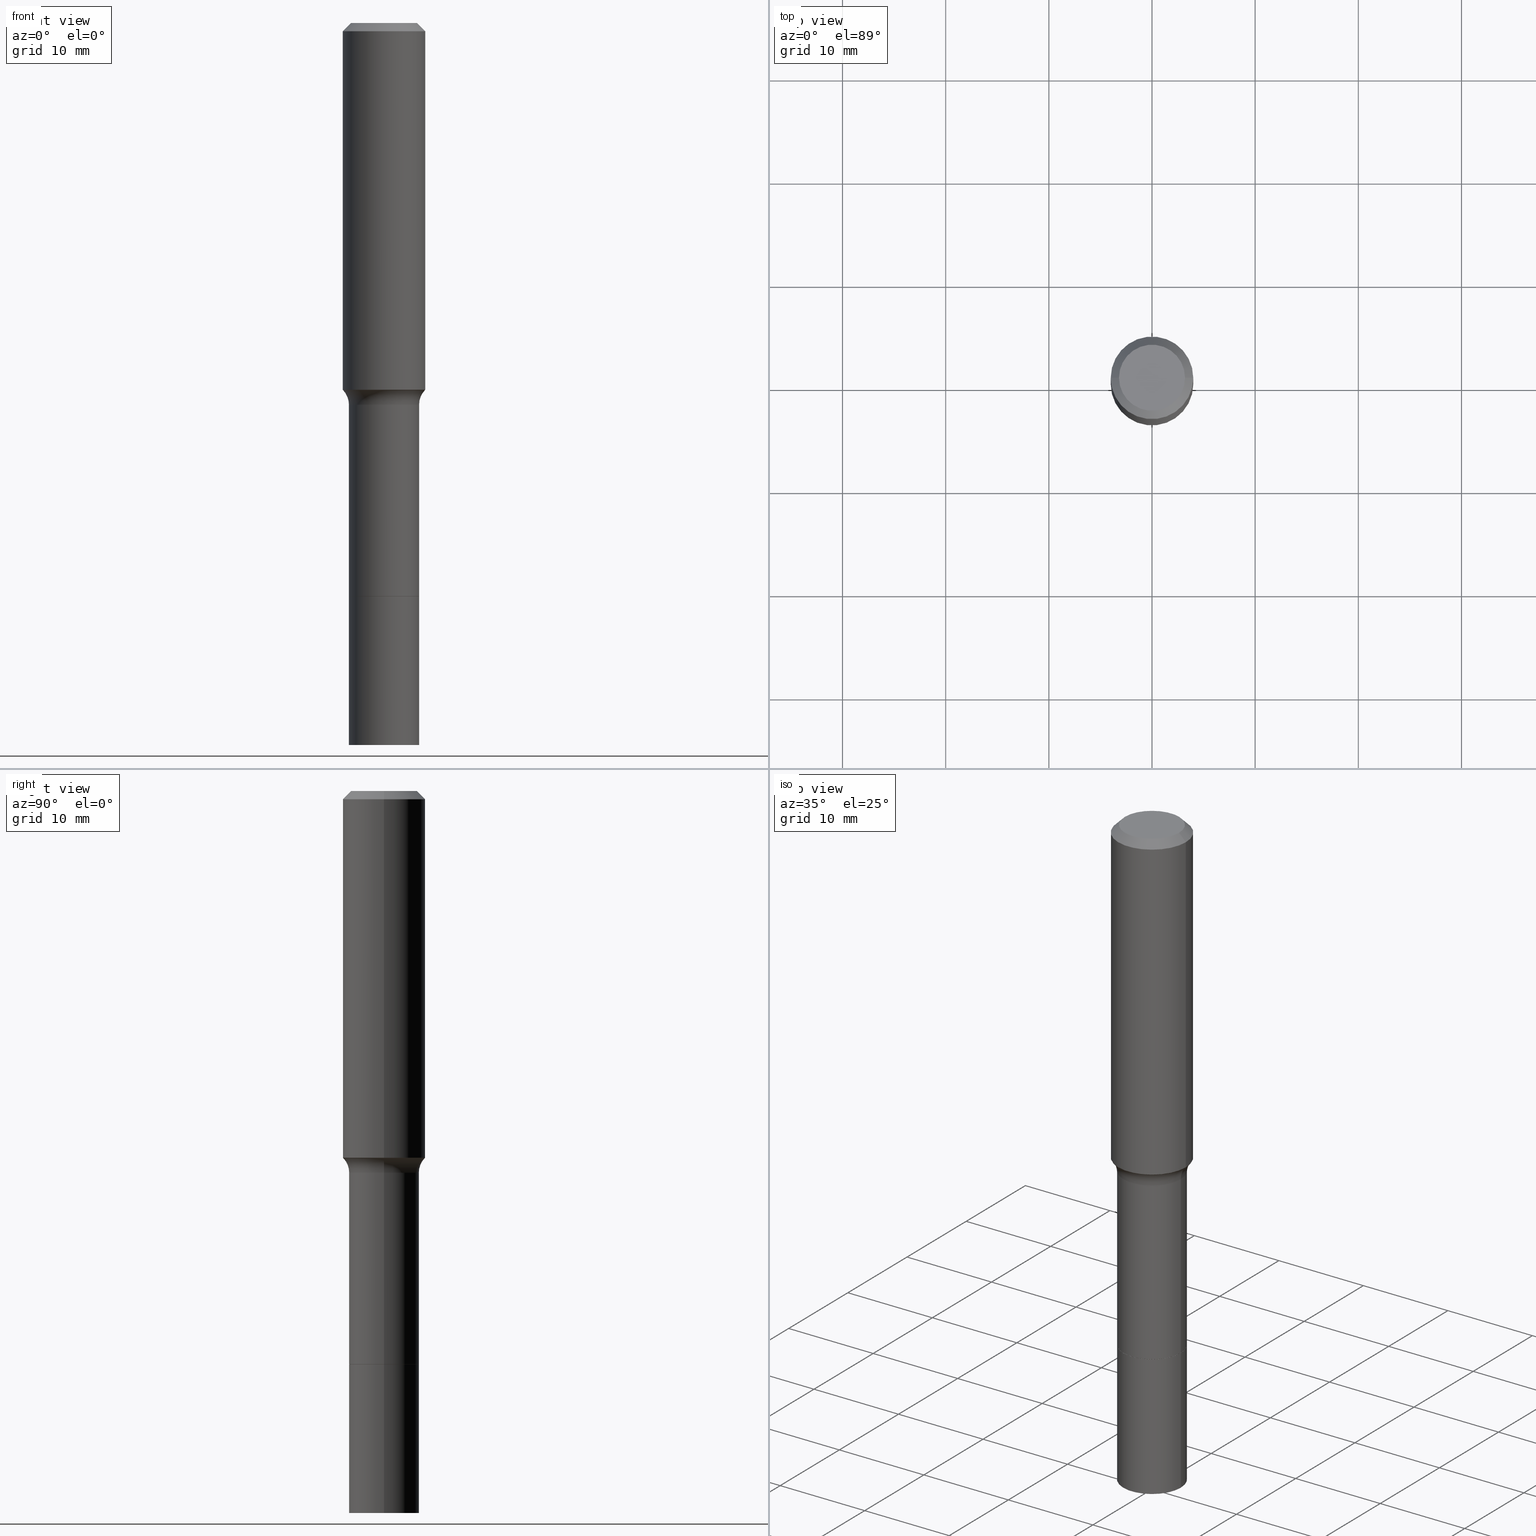
[diagram: canonical four-view strip — front | top / right | iso, engineering-drawing reading convention]
A machine part, canonical four-view strip (front | top / right | iso — engineering-drawing reading convention). The complete STEP part file that produces these views, byte-faithful:
ISO-10303-21;
HEADER;
FILE_DESCRIPTION (( 'STEP AP203' ),
    '1' );
FILE_NAME ('67114.STEP',
    '2025-04-01T15:28:32',
    ( '' ),
    ( '' ),
    'SwSTEP 2.0',
    'SolidWorks 2024',
    '' );
FILE_SCHEMA (( 'CONFIG_CONTROL_DESIGN' ));
ENDSEC;

DATA;
#1 = DIMENSIONAL_EXPONENTS ( 1.000000000000000000, 0.000000000000000000, 0.000000000000000000, 0.000000000000000000, 0.000000000000000000, 0.000000000000000000, 0.000000000000000000 ) ;
#2 = DIRECTION ( 'NONE',  ( 1.000000000000000000, -6.982962677686262766E-15, 0.000000000000000000 ) ) ;
#3 = PERSON_AND_ORGANIZATION_ROLE ( 'creator' ) ;
#4 = ADVANCED_FACE ( 'NONE', ( #360 ), #125, .T. ) ;
#5 = CYLINDRICAL_SURFACE ( 'NONE', #141, 0.1575000000000000844 ) ;
#6 = ORIENTED_EDGE ( 'NONE', *, *, #381, .F. ) ;
#7 = AXIS2_PLACEMENT_3D ( 'NONE', #364, #443, #240 ) ;
#8 = PERSON_AND_ORGANIZATION_ROLE ( 'design_owner' ) ;
#9 = CC_DESIGN_APPROVAL ( #300, ( #401 ) ) ;
#10 = EDGE_CURVE ( 'NONE', #255, #508, #46, .T. ) ;
#11 = PLANE ( 'NONE',  #425 ) ;
#12 = ORIENTED_EDGE ( 'NONE', *, *, #278, .T. ) ;
#13 = DIRECTION ( 'NONE',  ( 1.000000000000000000, -6.982962677686267499E-15, 4.876176775795936353E-29 ) ) ;
#14 = DIRECTION ( 'NONE',  ( 1.000000000000000000, -6.982962677686265922E-15, 4.876281427513067258E-29 ) ) ;
#15 = VERTEX_POINT ( 'NONE', #325 ) ;
#16 = CARTESIAN_POINT ( 'NONE',  ( 0.000000000000000000, 0.000000000000000000, 0.000000000000000000 ) ) ;
#17 = CARTESIAN_POINT ( 'NONE',  ( 3.562803503731125923E-29, -5.086739162560578258E-15, -1.456899999999999862 ) ) ;
#18 = LOCAL_TIME ( 11, 28, 32.00000000000000000, #26 ) ;
#19 = ORIENTED_EDGE ( 'NONE', *, *, #56, .F. ) ;
#20 = CIRCLE ( 'NONE', #324, 0.1338499999999999968 ) ;
#21 = CARTESIAN_POINT ( 'NONE',  ( 6.739467482965618232E-29, -9.622173421717824390E-15, -2.755900000000000016 ) ) ;
#22 = VERTEX_POINT ( 'NONE', #448 ) ;
#23 = CARTESIAN_POINT ( 'NONE',  ( 6.739467482965618232E-29, -9.622173421717824390E-15, -2.755900000000000016 ) ) ;
#24 = CARTESIAN_POINT ( 'NONE',  ( -0.1575000000000000011, 9.898349595620272334E-16, -0.03150000000000020839 ) ) ;
#25 = EDGE_LOOP ( 'NONE', ( #391, #498, #419, #209 ) ) ;
#26 = COORDINATED_UNIVERSAL_TIME_OFFSET ( 5, 0, .BEHIND. ) ;
#27 = VECTOR ( 'NONE', #250, 39.37007874015748143 ) ;
#28 = LOCAL_TIME ( 11, 28, 32.00000000000000000, #219 ) ;
#29 = DIRECTION ( 'NONE',  ( -2.445468806185136597E-29, 3.491481338843145583E-15, 1.000000000000000000 ) ) ;
#30 = CARTESIAN_POINT ( 'NONE',  ( 5.352886669858645925E-29, -7.642503502593762035E-15, -2.188900000000000290 ) ) ;
#31 = VERTEX_POINT ( 'NONE', #487 ) ;
#32 = PRODUCT_RELATED_PRODUCT_CATEGORY ( 'detail', '', ( #308 ) ) ;
#33 = AXIS2_PLACEMENT_3D ( 'NONE', #144, #430, #221 ) ;
#34 = DIRECTION ( 'NONE',  ( 1.000000000000000000, -6.982962677686267499E-15, 0.000000000000000000 ) ) ;
#35 = ADVANCED_FACE ( 'NONE', ( #239 ), #299, .T. ) ;
#36 = CARTESIAN_POINT ( 'NONE',  ( -0.1553417038704660580, -3.792475206320628613E-15, -1.402340131195000117 ) ) ;
#37 = CALENDAR_DATE ( 2025, 1, 4 ) ;
#38 =( CONVERSION_BASED_UNIT ( 'INCH', #228 ) LENGTH_UNIT ( ) NAMED_UNIT ( #1 ) );
#39 = AXIS2_PLACEMENT_3D ( 'NONE', #105, #305, #432 ) ;
#40 = ORIENTED_EDGE ( 'NONE', *, *, #184, .F. ) ;
#41 = ORIENTED_EDGE ( 'NONE', *, *, #314, .T. ) ;
#42 = CARTESIAN_POINT ( 'NONE',  ( 5.352886669858645925E-29, -7.642503502593762035E-15, -2.188899999999999846 ) ) ;
#43 = DIRECTION ( 'NONE',  ( -2.445468806185136597E-29, 3.491481338843145583E-15, 1.000000000000000000 ) ) ;
#44 = CARTESIAN_POINT ( 'NONE',  ( 3.429379046498945031E-29, -4.896244398778191776E-15, -1.402340131195000117 ) ) ;
#45 = FACE_OUTER_BOUND ( 'NONE', #199, .T. ) ;
#46 = CIRCLE ( 'NONE', #73, 0.1260000000000000009 ) ;
#47 = CIRCLE ( 'NONE', #336, 0.1338500000000001633 ) ;
#48 = EDGE_LOOP ( 'NONE', ( #126, #463 ) ) ;
#49 = DIRECTION ( 'NONE',  ( 1.000000000000000000, -6.982962677686266711E-15, 0.000000000000000000 ) ) ;
#50 = ORIENTED_EDGE ( 'NONE', *, *, #311, .F. ) ;
#51 = CC_DESIGN_PERSON_AND_ORGANIZATION_ASSIGNMENT ( #469, #302, ( #401 ) ) ;
#52 = CYLINDRICAL_SURFACE ( 'NONE', #281, 0.1575000000000000844 ) ;
#53 = FACE_OUTER_BOUND ( 'NONE', #260, .T. ) ;
#54 = ORIENTED_EDGE ( 'NONE', *, *, #342, .F. ) ;
#55 = DIRECTION ( 'NONE',  ( -0.6819983600625181275, 7.399397606724362307E-15, 0.7313537016191521412 ) ) ;
#56 = EDGE_CURVE ( 'NONE', #508, #255, #361, .T. ) ;
#57 = ORIENTED_EDGE ( 'NONE', *, *, #146, .F. ) ;
#58 = AXIS2_PLACEMENT_3D ( 'NONE', #511, #227, #92 ) ;
#59 = ORIENTED_EDGE ( 'NONE', *, *, #278, .F. ) ;
#60 = DIRECTION ( 'NONE',  ( 1.000000000000000000, -6.982962677686265133E-15, 0.000000000000000000 ) ) ;
#61 = PERSON_AND_ORGANIZATION ( #405, #471 ) ;
#62 = CARTESIAN_POINT ( 'NONE',  ( 5.352886669858645925E-29, -7.642503502593762035E-15, -2.188900000000000290 ) ) ;
#63 = AXIS2_PLACEMENT_3D ( 'NONE', #127, #210, #505 ) ;
#64 = AXIS2_PLACEMENT_3D ( 'NONE', #68, #424, #218 ) ;
#65 = PERSON_AND_ORGANIZATION_ROLE ( 'classification_officer' ) ;
#66 = FACE_OUTER_BOUND ( 'NONE', #192, .T. ) ;
#67 = CC_DESIGN_PERSON_AND_ORGANIZATION_ASSIGNMENT ( #76, #65, ( #238 ) ) ;
#68 = CARTESIAN_POINT ( 'NONE',  ( 0.2138499999999999568, -6.580045731183786053E-15, -1.456899999999999862 ) ) ;
#69 = ADVANCED_FACE ( 'NONE', ( #66 ), #389, .T. ) ;
#70 = CARTESIAN_POINT ( 'NONE',  ( 7.703226739483230474E-31, -1.099816621735598031E-16, -0.03150000000000020839 ) ) ;
#71 = ORIENTED_EDGE ( 'NONE', *, *, #118, .F. ) ;
#72 = APPROVAL_DATE_TIME ( #392, #412 ) ;
#73 = AXIS2_PLACEMENT_3D ( 'NONE', #485, #122, #14 ) ;
#74 = LOCAL_TIME ( 11, 28, 32.00000000000000000, #476 ) ;
#75 = CARTESIAN_POINT ( 'NONE',  ( 3.423719035269371111E-29, -4.888163402800768123E-15, -1.400025641958720479 ) ) ;
#76 = PERSON_AND_ORGANIZATION ( #405, #471 ) ;
#77 = FACE_OUTER_BOUND ( 'NONE', #170, .T. ) ;
#78 = CYLINDRICAL_SURFACE ( 'NONE', #399, 0.1338500000000000800 ) ;
#79 = ORIENTED_EDGE ( 'NONE', *, *, #294, .F. ) ;
#80 = EDGE_CURVE ( 'NONE', #272, #22, #135, .T. ) ;
#81 = CIRCLE ( 'NONE', #117, 0.1575000000000000011 ) ;
#82 = DIRECTION ( 'NONE',  ( -2.445468806185136597E-29, 3.491481338843145583E-15, 1.000000000000000000 ) ) ;
#83 = CIRCLE ( 'NONE', #63, 0.1553417038704660580 ) ;
#84 = LINE ( 'NONE', #243, #337 ) ;
#85 = VECTOR ( 'NONE', #264, 39.37007874015748143 ) ;
#86 = LOCAL_TIME ( 11, 28, 32.00000000000000000, #268 ) ;
#87 = ORIENTED_EDGE ( 'NONE', *, *, #152, .F. ) ;
#88 = DIRECTION ( 'NONE',  ( -2.445468806185136597E-29, 3.491481338843145583E-15, 1.000000000000000000 ) ) ;
#89 = ORIENTED_EDGE ( 'NONE', *, *, #236, .F. ) ;
#90 = CARTESIAN_POINT ( 'NONE',  ( 0.1338499999999999968, -8.575427316332646674E-15, -2.188400000000000123 ) ) ;
#91 = ORIENTED_EDGE ( 'NONE', *, *, #470, .F. ) ;
#92 = DIRECTION ( 'NONE',  ( 1.000000000000000000, -6.982962677686263555E-15, 0.000000000000000000 ) ) ;
#93 = ORIENTED_EDGE ( 'NONE', *, *, #10, .F. ) ;
#94 = CIRCLE ( 'NONE', #33, 0.1338499999999999968 ) ;
#95 = APPROVAL_ROLE ( '' ) ;
#96 = FACE_OUTER_BOUND ( 'NONE', #206, .T. ) ;
#97 = DIRECTION ( 'NONE',  ( -2.445468806185136597E-29, 3.491481338843145583E-15, 1.000000000000000000 ) ) ;
#98 = EDGE_LOOP ( 'NONE', ( #166, #375 ) ) ;
#99 = EDGE_CURVE ( 'NONE', #452, #225, #256, .T. ) ;
#100 = PERSON_AND_ORGANIZATION ( #405, #471 ) ;
#101 = DIRECTION ( 'NONE',  ( -2.445468806185136597E-29, 3.491481338843145583E-15, 1.000000000000000000 ) ) ;
#102 = CIRCLE ( 'NONE', #398, 0.1553417038704660580 ) ;
#103 = DIRECTION ( 'NONE',  ( -2.445468806185136597E-29, 3.491481338843145583E-15, 1.000000000000000000 ) ) ;
#104 = CARTESIAN_POINT ( 'NONE',  ( -0.1338499999999999968, -7.681277010340897362E-15, -2.188899999999999846 ) ) ;
#105 = CARTESIAN_POINT ( 'NONE',  ( 7.703226739483230474E-31, -1.099816621735598031E-16, -0.03150000000000020839 ) ) ;
#106 = SHAPE_DEFINITION_REPRESENTATION ( #162, #263 ) ;
#107 = TOROIDAL_SURFACE ( 'NONE', #435, 0.2138499999999999568, 0.08000000000000000167 ) ;
#108 = AXIS2_PLACEMENT_3D ( 'NONE', #129, #172, #516 ) ;
#109 = AXIS2_PLACEMENT_3D ( 'NONE', #16, #88, #275 ) ;
#110 = FACE_OUTER_BOUND ( 'NONE', #367, .T. ) ;
#111 = EDGE_LOOP ( 'NONE', ( #6, #328 ) ) ;
#112 = DATE_AND_TIME ( #37, #86 ) ;
#113 = ORIENTED_EDGE ( 'NONE', *, *, #203, .F. ) ;
#114 = ADVANCED_FACE ( 'NONE', ( #247 ), #297, .F. ) ;
#115 = VERTEX_POINT ( 'NONE', #327 ) ;
#116 = APPROVAL ( #474, 'UNSPECIFIED' ) ;
#117 = AXIS2_PLACEMENT_3D ( 'NONE', #70, #266, #303 ) ;
#118 = EDGE_CURVE ( 'NONE', #255, #396, #138, .T. ) ;
#119 = DIRECTION ( 'NONE',  ( -1.000000000000000000, 6.982962677686265922E-15, -4.876176775795935793E-29 ) ) ;
#120 = ORIENTED_EDGE ( 'NONE', *, *, #335, .F. ) ;
#121 = CARTESIAN_POINT ( 'NONE',  ( 0.000000000000000000, 0.000000000000000000, 0.000000000000000000 ) ) ;
#122 = DIRECTION ( 'NONE',  ( -2.445468806185136597E-29, 3.491481338843145583E-15, 1.000000000000000000 ) ) ;
#123 = DIRECTION ( 'NONE',  ( 1.000000000000000000, -6.982962677686267499E-15, 0.000000000000000000 ) ) ;
#124 = EDGE_CURVE ( 'NONE', #504, #396, #208, .T. ) ;
#125 = CONICAL_SURFACE ( 'NONE', #472, 0.1333499999999999963, 0.7853981633972775267 ) ;
#126 = ORIENTED_EDGE ( 'NONE', *, *, #10, .T. ) ;
#127 = CARTESIAN_POINT ( 'NONE',  ( 3.429379046498945031E-29, -4.896244398778191776E-15, -1.402340131195000117 ) ) ;
#128 = CARTESIAN_POINT ( 'NONE',  ( 6.739467482965618232E-29, -9.622173421717824390E-15, -2.755900000000000016 ) ) ;
#129 = CARTESIAN_POINT ( 'NONE',  ( 0.000000000000000000, 0.000000000000000000, 0.000000000000000000 ) ) ;
#130 = ORIENTED_EDGE ( 'NONE', *, *, #124, .F. ) ;
#131 = CALENDAR_DATE ( 2025, 1, 4 ) ;
#132 = CARTESIAN_POINT ( 'NONE',  ( -4.719860820353096954E-47, 6.738710358733626979E-33, 1.930043355456227940E-18 ) ) ;
#133 = VERTEX_POINT ( 'NONE', #502 ) ;
#134 = DIRECTION ( 'NONE',  ( -2.445468806185136597E-29, 3.491481338843145583E-15, 1.000000000000000000 ) ) ;
#135 = CIRCLE ( 'NONE', #423, 0.1333499999999999963 ) ;
#136 = VERTEX_POINT ( 'NONE', #339 ) ;
#137 = VECTOR ( 'NONE', #492, 39.37007874015748143 ) ;
#138 = LINE ( 'NONE', #24, #440 ) ;
#139 = EDGE_CURVE ( 'NONE', #136, #31, #408, .T. ) ;
#140 = FACE_OUTER_BOUND ( 'NONE', #468, .T. ) ;
#141 = AXIS2_PLACEMENT_3D ( 'NONE', #189, #103, #347 ) ;
#142 = CARTESIAN_POINT ( 'NONE',  ( -0.1260000000000000009, 9.348441284752484904E-16, 3.860086710906110326E-18 ) ) ;
#143 = DATE_TIME_ROLE ( 'classification_date' ) ;
#144 = CARTESIAN_POINT ( 'NONE',  ( 5.352886669858645925E-29, -7.642503502593762035E-15, -2.188899999999999846 ) ) ;
#145 = CALENDAR_DATE ( 2025, 1, 4 ) ;
#146 = EDGE_CURVE ( 'NONE', #31, #438, #460, .T. ) ;
#147 = CARTESIAN_POINT ( 'NONE',  ( 0.1333499999999999963, -8.573681575663225959E-15, -2.188900000000000290 ) ) ;
#148 = ORIENTED_EDGE ( 'NONE', *, *, #249, .T. ) ;
#149 = DATE_TIME_ROLE ( 'creation_date' ) ;
#150 = CONICAL_SURFACE ( 'NONE', #39, 0.1575000000000000011, 0.7853981633974447263 ) ;
#151 = CIRCLE ( 'NONE', #446, 0.1333499999999999963 ) ;
#152 = EDGE_CURVE ( 'NONE', #133, #115, #456, .T. ) ;
#153 = CIRCLE ( 'NONE', #167, 0.1575000000000001676 ) ;
#154 = ADVANCED_FACE ( 'NONE', ( #214 ), #451, .F. ) ;
#155 = APPLICATION_CONTEXT ( 'configuration controlled 3d designs of mechanical parts and assemblies' ) ;
#156 = DIRECTION ( 'NONE',  ( -2.445468806185136597E-29, 3.491481338843145583E-15, 1.000000000000000000 ) ) ;
#157 = DIRECTION ( 'NONE',  ( 1.000000000000000000, -6.982962677686267499E-15, 4.883557194083112901E-29 ) ) ;
#158 = AXIS2_PLACEMENT_3D ( 'NONE', #44, #501, #234 ) ;
#159 = CARTESIAN_POINT ( 'NONE',  ( -9.439721640706193907E-47, 1.347742071746725396E-32, 3.860086710912455880E-18 ) ) ;
#160 = MANIFOLD_SOLID_BREP ( 'Body-Move/Copy2[2]', #514 ) ;
#161 = CARTESIAN_POINT ( 'NONE',  ( -0.1338499999999999690, 9.510614518148938785E-16, -6.583994618306189520E-30 ) ) ;
#162 = PRODUCT_DEFINITION_SHAPE ( 'NONE', 'NONE',  #401 ) ;
#163 = ORIENTED_EDGE ( 'NONE', *, *, #437, .T. ) ;
#164 = ADVANCED_FACE ( 'NONE', ( #96 ), #333, .T. ) ;
#165 = MANIFOLD_SOLID_BREP ( 'Body-Move/Copy2[1]', #355 ) ;
#166 = ORIENTED_EDGE ( 'NONE', *, *, #80, .F. ) ;
#167 = AXIS2_PLACEMENT_3D ( 'NONE', #332, #246, #123 ) ;
#168 = DIRECTION ( 'NONE',  ( 1.000000000000000000, -6.982962677686267499E-15, 4.883557194083112901E-29 ) ) ;
#169 = AXIS2_PLACEMENT_3D ( 'NONE', #132, #212, #465 ) ;
#170 = EDGE_LOOP ( 'NONE', ( #445, #331 ) ) ;
#171 = CARTESIAN_POINT ( 'NONE',  ( 5.351663935455553124E-29, -7.640757761924339742E-15, -2.188400000000000123 ) ) ;
#172 = DIRECTION ( 'NONE',  ( -2.445468806185136597E-29, 3.491481338843145583E-15, 1.000000000000000000 ) ) ;
#173 = ORIENTED_EDGE ( 'NONE', *, *, #417, .T. ) ;
#174 = DIRECTION ( 'NONE',  ( -2.445468806185136597E-29, 3.491481338843145583E-15, 1.000000000000000000 ) ) ;
#175 = DIRECTION ( 'NONE',  ( -2.445468806185136877E-29, 3.491481338843145188E-15, 1.000000000000000000 ) ) ;
#176 = DIRECTION ( 'NONE',  ( 1.000000000000000000, -6.982962677686265922E-15, 4.876176775795935793E-29 ) ) ;
#177 = ORIENTED_EDGE ( 'NONE', *, *, #342, .T. ) ;
#178 = TOROIDAL_SURFACE ( 'NONE', #181, 0.2138499999999999568, 0.08000000000000000167 ) ;
#179 = PLANE ( 'NONE',  #323 ) ;
#180 = AXIS2_PLACEMENT_3D ( 'NONE', #287, #261, #289 ) ;
#181 = AXIS2_PLACEMENT_3D ( 'NONE', #320, #43, #157 ) ;
#182 = EDGE_CURVE ( 'NONE', #22, #15, #500, .T. ) ;
#183 = DIRECTION ( 'NONE',  ( 1.000000000000000000, -6.982962677686265922E-15, 0.000000000000000000 ) ) ;
#184 = EDGE_CURVE ( 'NONE', #257, #225, #458, .T. ) ;
#185 = PERSON_AND_ORGANIZATION ( #405, #471 ) ;
#186 = DIRECTION ( 'NONE',  ( 1.000000000000000000, -6.982962677686262766E-15, 0.000000000000000000 ) ) ;
#187 = DIRECTION ( 'NONE',  ( -2.445468806185136597E-29, 3.491481338843145583E-15, 1.000000000000000000 ) ) ;
#188 = SECURITY_CLASSIFICATION_LEVEL ( 'unclassified' ) ;
#189 = CARTESIAN_POINT ( 'NONE',  ( 0.000000000000000000, 0.000000000000000000, 0.000000000000000000 ) ) ;
#190 = CARTESIAN_POINT ( 'NONE',  ( 0.1333499999999999963, -8.573681575663225959E-15, -2.188900000000000290 ) ) ;
#191 = ORIENTED_EDGE ( 'NONE', *, *, #311, .T. ) ;
#192 = EDGE_LOOP ( 'NONE', ( #12, #431, #248, #89 ) ) ;
#193 = AXIS2_PLACEMENT_3D ( 'NONE', #128, #366, #251 ) ;
#194 = CIRCLE ( 'NONE', #64, 0.08000000000000000167 ) ;
#195 = CIRCLE ( 'NONE', #193, 0.1338500000000001633 ) ;
#196 = ORIENTED_EDGE ( 'NONE', *, *, #428, .T. ) ;
#197 = CARTESIAN_POINT ( 'NONE',  ( 3.562803503731125923E-29, -5.086739162560578258E-15, -1.456899999999999862 ) ) ;
#198 = CIRCLE ( 'NONE', #269, 0.1338499999999999968 ) ;
#199 = EDGE_LOOP ( 'NONE', ( #113, #93, #464, #232 ) ) ;
#200 = EDGE_CURVE ( 'NONE', #272, #494, #393, .T. ) ;
#201 = ORIENTED_EDGE ( 'NONE', *, *, #381, .T. ) ;
#202 = CARTESIAN_POINT ( 'NONE',  ( -0.1338500000000000800, -6.691442050778866184E-15, -2.188899999999999846 ) ) ;
#203 = EDGE_CURVE ( 'NONE', #508, #504, #262, .T. ) ;
#204 = DIRECTION ( 'NONE',  ( -2.445468806185136597E-29, 3.491481338843145583E-15, 1.000000000000000000 ) ) ;
#205 = CARTESIAN_POINT ( 'NONE',  ( 5.352886669858645925E-29, -7.642503502593762035E-15, -2.188900000000000290 ) ) ;
#206 = EDGE_LOOP ( 'NONE', ( #201, #41, #254, #87 ) ) ;
#207 = EDGE_CURVE ( 'NONE', #22, #272, #151, .T. ) ;
#208 = CIRCLE ( 'NONE', #274, 0.1575000000000000011 ) ;
#209 = ORIENTED_EDGE ( 'NONE', *, *, #249, .F. ) ;
#210 = DIRECTION ( 'NONE',  ( -2.445468806185136597E-29, 3.491481338843145583E-15, 1.000000000000000000 ) ) ;
#211 = CARTESIAN_POINT ( 'NONE',  ( 0.1575000000000000844, -1.099816621735587677E-15, 7.679978421878603638E-30 ) ) ;
#212 = DIRECTION ( 'NONE',  ( 2.438088387897960049E-29, -3.491481338843145188E-15, -1.000000000000000000 ) ) ;
#213 = ORIENTED_EDGE ( 'NONE', *, *, #314, .F. ) ;
#214 = FACE_OUTER_BOUND ( 'NONE', #98, .T. ) ;
#215 = CALENDAR_DATE ( 2025, 1, 4 ) ;
#216 = VECTOR ( 'NONE', #390, 39.37007874015748143 ) ;
#217 = CC_DESIGN_SECURITY_CLASSIFICATION ( #238, ( #481 ) ) ;
#218 = DIRECTION ( 'NONE',  ( 1.000000000000000000, -6.982962677686271444E-15, 0.000000000000000000 ) ) ;
#219 = COORDINATED_UNIVERSAL_TIME_OFFSET ( 5, 0, .BEHIND. ) ;
#220 = CARTESIAN_POINT ( 'NONE',  ( 5.352886669858645925E-29, -7.642503502593762035E-15, -2.188900000000000290 ) ) ;
#221 = DIRECTION ( 'NONE',  ( 1.000000000000000000, -6.982962677686267499E-15, 0.000000000000000000 ) ) ;
#222 = DIRECTION ( 'NONE',  ( 1.000000000000000000, -6.982962677686265133E-15, 0.000000000000000000 ) ) ;
#223 = APPROVAL_DATE_TIME ( #112, #116 ) ;
#224 = LINE ( 'NONE', #490, #216 ) ;
#225 = VERTEX_POINT ( 'NONE', #402 ) ;
#226 = PERSON_AND_ORGANIZATION ( #405, #471 ) ;
#227 = DIRECTION ( 'NONE',  ( -2.445468806185136597E-29, 3.491481338843145583E-15, 1.000000000000000000 ) ) ;
#228 = LENGTH_MEASURE_WITH_UNIT ( LENGTH_MEASURE( 0.02539999999999999897 ), #370 );
#229 = CC_DESIGN_PERSON_AND_ORGANIZATION_ASSIGNMENT ( #365, #8, ( #308 ) ) ;
#230 = EDGE_LOOP ( 'NONE', ( #50, #173, #267, #40 ) ) ;
#231 = APPROVAL_PERSON_ORGANIZATION ( #61, #300, #95 ) ;
#232 = ORIENTED_EDGE ( 'NONE', *, *, #294, .T. ) ;
#233 = CIRCLE ( 'NONE', #252, 0.1338499999999999135 ) ;
#234 = DIRECTION ( 'NONE',  ( 1.000000000000000000, -6.982962677686266711E-15, 0.000000000000000000 ) ) ;
#235 = CARTESIAN_POINT ( 'NONE',  ( 0.1575000000000000011, -1.209798283909146741E-15, -0.03150000000000020839 ) ) ;
#236 = EDGE_CURVE ( 'NONE', #494, #438, #224, .T. ) ;
#237 = APPLICATION_PROTOCOL_DEFINITION ( 'international standard', 'config_control_design', 1994, #488 ) ;
#238 = SECURITY_CLASSIFICATION ( '', '', #188 ) ;
#239 = FACE_OUTER_BOUND ( 'NONE', #230, .T. ) ;
#240 = DIRECTION ( 'NONE',  ( -1.000000000000000000, 6.982962677686265922E-15, 0.000000000000000000 ) ) ;
#241 = EDGE_CURVE ( 'NONE', #371, #115, #282, .T. ) ;
#242 = ORIENTED_EDGE ( 'NONE', *, *, #470, .T. ) ;
#243 = CARTESIAN_POINT ( 'NONE',  ( -0.1575000000000000844, 1.119104808822158392E-15, -7.747322767151481189E-30 ) ) ;
#244 = ORIENTED_EDGE ( 'NONE', *, *, #80, .T. ) ;
#245 = EDGE_CURVE ( 'NONE', #438, #31, #233, .T. ) ;
#246 = DIRECTION ( 'NONE',  ( -2.445468806185136597E-29, 3.491481338843145583E-15, 1.000000000000000000 ) ) ;
#247 = FACE_OUTER_BOUND ( 'NONE', #48, .T. ) ;
#248 = ORIENTED_EDGE ( 'NONE', *, *, #245, .F. ) ;
#249 = EDGE_CURVE ( 'NONE', #452, #438, #194, .T. ) ;
#250 = DIRECTION ( 'NONE',  ( -0.7071067811864267805, 7.493145998869918709E-15, 0.7071067811866682540 ) ) ;
#251 = DIRECTION ( 'NONE',  ( 1.000000000000000000, -6.982962677686266711E-15, 0.000000000000000000 ) ) ;
#252 = AXIS2_PLACEMENT_3D ( 'NONE', #197, #436, #222 ) ;
#253 = DIRECTION ( 'NONE',  ( -2.438088387897960049E-29, 3.491481338843145188E-15, 1.000000000000000000 ) ) ;
#254 = ORIENTED_EDGE ( 'NONE', *, *, #273, .F. ) ;
#255 = VERTEX_POINT ( 'NONE', #142 ) ;
#256 = LINE ( 'NONE', #330, #434 ) ;
#257 = VERTEX_POINT ( 'NONE', #301 ) ;
#258 = DESIGN_CONTEXT ( 'detailed design', #155, 'design' ) ;
#259 = DIRECTION ( 'NONE',  ( -2.445468806185136597E-29, 3.491481338843145583E-15, 1.000000000000000000 ) ) ;
#260 = EDGE_LOOP ( 'NONE', ( #384, #457, #416, #379 ) ) ;
#261 = DIRECTION ( 'NONE',  ( 7.105427357601001859E-15, 1.000000000000000000, -3.491481338843145583E-15 ) ) ;
#262 = LINE ( 'NONE', #343, #383 ) ;
#263 = ADVANCED_BREP_SHAPE_REPRESENTATION ( '67114', ( #165, #160, #298 ), #310 ) ;
#264 = DIRECTION ( 'NONE',  ( 0.7071067811864267805, -2.468850131080992517E-15, 0.7071067811866682540 ) ) ;
#265 = ADVANCED_FACE ( 'NONE', ( #387 ), #78, .T. ) ;
#266 = DIRECTION ( 'NONE',  ( -2.445468806185136597E-29, 3.491481338843145583E-15, 1.000000000000000000 ) ) ;
#267 = ORIENTED_EDGE ( 'NONE', *, *, #99, .T. ) ;
#268 = COORDINATED_UNIVERSAL_TIME_OFFSET ( 5, 0, .BEHIND. ) ;
#269 = AXIS2_PLACEMENT_3D ( 'NONE', #171, #442, #449 ) ;
#270 = CC_DESIGN_APPROVAL ( #412, ( #481 ) ) ;
#271 = DIRECTION ( 'NONE',  ( 1.000000000000000000, -6.982962677686267499E-15, 0.000000000000000000 ) ) ;
#272 = VERTEX_POINT ( 'NONE', #147 ) ;
#273 = EDGE_CURVE ( 'NONE', #115, #371, #94, .T. ) ;
#274 = AXIS2_PLACEMENT_3D ( 'NONE', #421, #29, #183 ) ;
#275 = DIRECTION ( 'NONE',  ( 1.000000000000000000, -6.982962677686266711E-15, 4.876176775795935793E-29 ) ) ;
#276 = CC_DESIGN_DATE_AND_TIME_ASSIGNMENT ( #306, #149, ( #401 ) ) ;
#277 = APPLICATION_PROTOCOL_DEFINITION ( 'international standard', 'config_control_design', 1994, #155 ) ;
#278 = EDGE_CURVE ( 'NONE', #494, #15, #20, .T. ) ;
#279 = CARTESIAN_POINT ( 'NONE',  ( 0.1553417038704661968, -5.980989719193848286E-15, -1.402340131195000117 ) ) ;
#280 = EDGE_LOOP ( 'NONE', ( #177, #191, #450, #351 ) ) ;
#281 = AXIS2_PLACEMENT_3D ( 'NONE', #121, #204, #13 ) ;
#282 = CIRCLE ( 'NONE', #316, 0.1338499999999999968 ) ;
#283 = FACE_OUTER_BOUND ( 'NONE', #25, .T. ) ;
#284 = ADVANCED_FACE ( 'NONE', ( #140 ), #5, .T. ) ;
#285 = EDGE_LOOP ( 'NONE', ( #91, #356, #196, #79 ) ) ;
#286 = DIRECTION ( 'NONE',  ( 1.000000000000000000, -6.982962677686266711E-15, 0.000000000000000000 ) ) ;
#287 = CARTESIAN_POINT ( 'NONE',  ( -0.2138499999999999568, -3.567243522137604121E-15, -1.456899999999999862 ) ) ;
#288 = EDGE_LOOP ( 'NONE', ( #319, #54, #148, #348 ) ) ;
#289 = DIRECTION ( 'NONE',  ( -1.000000000000000000, 7.105427357600997914E-15, 0.000000000000000000 ) ) ;
#290 = ORIENTED_EDGE ( 'NONE', *, *, #428, .F. ) ;
#291 = CONICAL_SURFACE ( 'NONE', #382, 0.1553417038704660580, 0.7504915783575886179 ) ;
#292 = CARTESIAN_POINT ( 'NONE',  ( 0.1338500000000000800, -8.577173057002068967E-15, -2.188899999999999846 ) ) ;
#293 = ORIENTED_EDGE ( 'NONE', *, *, #182, .T. ) ;
#294 = EDGE_CURVE ( 'NONE', #396, #504, #81, .T. ) ;
#295 = ADVANCED_FACE ( 'NONE', ( #110 ), #150, .T. ) ;
#296 = APPROVAL_ROLE ( '' ) ;
#297 = PLANE ( 'NONE',  #169 ) ;
#298 = AXIS2_PLACEMENT_3D ( 'NONE', #441, #411, #352 ) ;
#299 = CONICAL_SURFACE ( 'NONE', #158, 0.1553417038704660580, 0.7504915783575886179 ) ;
#300 = APPROVAL ( #467, 'UNSPECIFIED' ) ;
#301 = CARTESIAN_POINT ( 'NONE',  ( -0.1575000000000001676, -3.769058593978608942E-15, -1.400025641958720479 ) ) ;
#302 = PERSON_AND_ORGANIZATION_ROLE ( 'creator' ) ;
#303 = DIRECTION ( 'NONE',  ( 1.000000000000000000, -6.982962677686265922E-15, 0.000000000000000000 ) ) ;
#304 = APPROVAL_STATUS ( 'not_yet_approved' ) ;
#305 = DIRECTION ( 'NONE',  ( 2.445468806185136597E-29, -3.491481338843145583E-15, -1.000000000000000000 ) ) ;
#306 = DATE_AND_TIME ( #145, #74 ) ;
#307 = VECTOR ( 'NONE', #55, 39.37007874015748143 ) ;
#308 = PRODUCT ( '67114', '67114', '', ( #359 ) ) ;
#309 = AXIS2_PLACEMENT_3D ( 'NONE', #517, #134, #60 ) ;
#310 =( GEOMETRIC_REPRESENTATION_CONTEXT ( 3 ) GLOBAL_UNCERTAINTY_ASSIGNED_CONTEXT ( ( #346 ) ) GLOBAL_UNIT_ASSIGNED_CONTEXT ( ( #38, #354, #312 ) ) REPRESENTATION_CONTEXT ( 'NONE', 'WORKASPACE' ) );
#311 = EDGE_CURVE ( 'NONE', #136, #257, #395, .T. ) ;
#312 =( NAMED_UNIT ( * ) SI_UNIT ( $, .STERADIAN. ) SOLID_ANGLE_UNIT ( ) );
#313 = VERTEX_POINT ( 'NONE', #329 ) ;
#314 = EDGE_CURVE ( 'NONE', #313, #371, #495, .T. ) ;
#315 = DIRECTION ( 'NONE',  ( 0.7071067811865450192, -7.319954787623246579E-15, -0.7071067811865500152 ) ) ;
#316 = AXIS2_PLACEMENT_3D ( 'NONE', #42, #259, #429 ) ;
#317 = CARTESIAN_POINT ( 'NONE',  ( 0.1260000000000000009, -1.027466422270894443E-15, 3.860086710919124220E-18 ) ) ;
#318 = DIRECTION ( 'NONE',  ( -2.445468806185136597E-29, 3.491481338843145583E-15, 1.000000000000000000 ) ) ;
#319 = ORIENTED_EDGE ( 'NONE', *, *, #139, .F. ) ;
#320 = CARTESIAN_POINT ( 'NONE',  ( 3.562803503731125923E-29, -5.086739162560578258E-15, -1.456899999999999862 ) ) ;
#321 = ADVANCED_FACE ( 'NONE', ( #406 ), #362, .T. ) ;
#322 = ORIENTED_EDGE ( 'NONE', *, *, #236, .T. ) ;
#323 = AXIS2_PLACEMENT_3D ( 'NONE', #466, #455, #407 ) ;
#324 = AXIS2_PLACEMENT_3D ( 'NONE', #340, #518, #34 ) ;
#325 = CARTESIAN_POINT ( 'NONE',  ( -0.1338499999999999968, -5.412687010427565516E-15, -2.188400000000000123 ) ) ;
#326 = CARTESIAN_POINT ( 'NONE',  ( -0.1575000000000000011, -1.379967723665005201E-15, -0.03150000000000020839 ) ) ;
#327 = CARTESIAN_POINT ( 'NONE',  ( 0.1338499999999999968, -8.577173057002068967E-15, -2.188899999999999846 ) ) ;
#328 = ORIENTED_EDGE ( 'NONE', *, *, #350, .F. ) ;
#329 = CARTESIAN_POINT ( 'NONE',  ( -0.1338500000000001633, -7.681277010340897362E-15, -2.755900000000000016 ) ) ;
#330 = CARTESIAN_POINT ( 'NONE',  ( 0.1553417038704660580, -5.980989719193848286E-15, -1.402340131195000117 ) ) ;
#331 = ORIENTED_EDGE ( 'NONE', *, *, #241, .T. ) ;
#332 = CARTESIAN_POINT ( 'NONE',  ( 3.423719035269371111E-29, -4.888163402800768123E-15, -1.400025641958720479 ) ) ;
#333 = CYLINDRICAL_SURFACE ( 'NONE', #58, 0.1338500000000000800 ) ;
#334 = ORIENTED_EDGE ( 'NONE', *, *, #350, .T. ) ;
#335 = EDGE_CURVE ( 'NONE', #15, #31, #453, .T. ) ;
#336 = AXIS2_PLACEMENT_3D ( 'NONE', #23, #174, #477 ) ;
#337 = VECTOR ( 'NONE', #413, 39.37007874015748143 ) ;
#338 = DIRECTION ( 'NONE',  ( 1.000000000000000000, -6.982962677686262766E-15, 0.000000000000000000 ) ) ;
#339 = CARTESIAN_POINT ( 'NONE',  ( -0.1553417038704661968, -3.792475206320627824E-15, -1.402340131195000117 ) ) ;
#340 = CARTESIAN_POINT ( 'NONE',  ( 5.351663935455553124E-29, -7.640757761924339742E-15, -2.188400000000000123 ) ) ;
#341 = APPROVAL_DATE_TIME ( #404, #300 ) ;
#342 = EDGE_CURVE ( 'NONE', #452, #136, #83, .T. ) ;
#343 = CARTESIAN_POINT ( 'NONE',  ( 0.1575000000000000011, -1.190510096822576026E-15, -0.03150000000000020839 ) ) ;
#344 = CALENDAR_DATE ( 2025, 1, 4 ) ;
#345 = AXIS2_PLACEMENT_3D ( 'NONE', #75, #156, #271 ) ;
#346 = UNCERTAINTY_MEASURE_WITH_UNIT (LENGTH_MEASURE( 1.000000000000000082E-05 ), #38, 'distance_accuracy_value', 'NONE');
#347 = DIRECTION ( 'NONE',  ( 1.000000000000000000, -6.982962677686267499E-15, 4.876176775795936353E-29 ) ) ;
#348 = ORIENTED_EDGE ( 'NONE', *, *, #245, .T. ) ;
#349 = ORIENTED_EDGE ( 'NONE', *, *, #241, .F. ) ;
#350 = EDGE_CURVE ( 'NONE', #313, #133, #47, .T. ) ;
#351 = ORIENTED_EDGE ( 'NONE', *, *, #99, .F. ) ;
#352 = DIRECTION ( 'NONE',  ( 1.000000000000000000, 0.000000000000000000, 0.000000000000000000 ) ) ;
#353 = CONICAL_SURFACE ( 'NONE', #409, 0.1333499999999999963, 0.7853981633972775267 ) ;
#354 =( NAMED_UNIT ( * ) PLANE_ANGLE_UNIT ( ) SI_UNIT ( $, .RADIAN. ) );
#355 = CLOSED_SHELL ( 'NONE', ( #164, #439, #265, #372 ) ) ;
#356 = ORIENTED_EDGE ( 'NONE', *, *, #184, .T. ) ;
#357 = EDGE_LOOP ( 'NONE', ( #213, #334, #483, #349 ) ) ;
#358 = DIRECTION ( 'NONE',  ( -2.445468806185136597E-29, 3.491481338843145583E-15, 1.000000000000000000 ) ) ;
#359 = MECHANICAL_CONTEXT ( 'NONE', #488, 'mechanical' ) ;
#360 = FACE_OUTER_BOUND ( 'NONE', #433, .T. ) ;
#361 = CIRCLE ( 'NONE', #394, 0.1260000000000000009 ) ;
#362 = CYLINDRICAL_SURFACE ( 'NONE', #109, 0.1338499999999999690 ) ;
#363 = APPROVAL_PERSON_ORGANIZATION ( #100, #412, #296 ) ;
#364 = CARTESIAN_POINT ( 'NONE',  ( 7.703226739483230474E-31, -1.099816621735598031E-16, -0.03150000000000020839 ) ) ;
#365 = PERSON_AND_ORGANIZATION ( #405, #471 ) ;
#366 = DIRECTION ( 'NONE',  ( -2.445468806185136597E-29, 3.491481338843145583E-15, 1.000000000000000000 ) ) ;
#367 = EDGE_LOOP ( 'NONE', ( #19, #400, #513, #71 ) ) ;
#368 = CC_DESIGN_PERSON_AND_ORGANIZATION_ASSIGNMENT ( #185, #3, ( #481 ) ) ;
#369 = FACE_OUTER_BOUND ( 'NONE', #285, .T. ) ;
#370 =( LENGTH_UNIT ( ) NAMED_UNIT ( * ) SI_UNIT ( $, .METRE. ) );
#371 = VERTEX_POINT ( 'NONE', #104 ) ;
#372 = ADVANCED_FACE ( 'NONE', ( #77 ), #179, .F. ) ;
#373 = ORIENTED_EDGE ( 'NONE', *, *, #200, .F. ) ;
#374 = LINE ( 'NONE', #211, #444 ) ;
#375 = ORIENTED_EDGE ( 'NONE', *, *, #207, .F. ) ;
#376 = CARTESIAN_POINT ( 'NONE',  ( 3.429379046498945031E-29, -4.896244398778191776E-15, -1.402340131195000117 ) ) ;
#377 = DIRECTION ( 'NONE',  ( -0.7071067811865450192, 2.468850131082230634E-15, -0.7071067811865500152 ) ) ;
#378 = ADVANCED_FACE ( 'NONE', ( #283 ), #107, .F. ) ;
#379 = ORIENTED_EDGE ( 'NONE', *, *, #459, .F. ) ;
#380 = CARTESIAN_POINT ( 'NONE',  ( -0.1333499999999999963, -6.694994764457669449E-15, -2.188900000000000290 ) ) ;
#381 = EDGE_CURVE ( 'NONE', #133, #313, #195, .T. ) ;
#382 = AXIS2_PLACEMENT_3D ( 'NONE', #376, #497, #49 ) ;
#383 = VECTOR ( 'NONE', #315, 39.37007874015748143 ) ;
#384 = ORIENTED_EDGE ( 'NONE', *, *, #182, .F. ) ;
#385 = CC_DESIGN_APPROVAL ( #116, ( #238 ) ) ;
#386 = APPROVAL_ROLE ( '' ) ;
#387 = FACE_OUTER_BOUND ( 'NONE', #357, .T. ) ;
#388 = DATE_AND_TIME ( #344, #28 ) ;
#389 = CYLINDRICAL_SURFACE ( 'NONE', #108, 0.1338499999999999690 ) ;
#390 = DIRECTION ( 'NONE',  ( -2.445468806185136877E-29, 3.491481338843145188E-15, 1.000000000000000000 ) ) ;
#391 = ORIENTED_EDGE ( 'NONE', *, *, #417, .F. ) ;
#392 = DATE_AND_TIME ( #215, #515 ) ;
#393 = LINE ( 'NONE', #190, #85 ) ;
#394 = AXIS2_PLACEMENT_3D ( 'NONE', #159, #82, #420 ) ;
#395 = LINE ( 'NONE', #36, #307 ) ;
#396 = VERTEX_POINT ( 'NONE', #326 ) ;
#397 = COORDINATED_UNIVERSAL_TIME_OFFSET ( 5, 0, .BEHIND. ) ;
#398 = AXIS2_PLACEMENT_3D ( 'NONE', #418, #318, #286 ) ;
#399 = AXIS2_PLACEMENT_3D ( 'NONE', #473, #358, #478 ) ;
#400 = ORIENTED_EDGE ( 'NONE', *, *, #203, .T. ) ;
#401 = PRODUCT_DEFINITION ( 'UNKNOWN', '', #481, #258 ) ;
#402 = CARTESIAN_POINT ( 'NONE',  ( 0.1575000000000001676, -5.987980024536356393E-15, -1.400025641958720479 ) ) ;
#403 = ADVANCED_FACE ( 'NONE', ( #506 ), #291, .T. ) ;
#404 = DATE_AND_TIME ( #131, #18 ) ;
#405 = PERSON ( 'UNSPECIFIED', 'UNSPECIFIED', 'UNSPECIFIED', ('UNSPECIFIED'), ('UNSPECIFIED'), ('UNSPECIFIED') ) ;
#406 = FACE_OUTER_BOUND ( 'NONE', #414, .T. ) ;
#407 = DIRECTION ( 'NONE',  ( -1.000000000000000000, 6.982962677686265922E-15, -4.876176775795935793E-29 ) ) ;
#408 = CIRCLE ( 'NONE', #180, 0.08000000000000000167 ) ;
#409 = AXIS2_PLACEMENT_3D ( 'NONE', #205, #491, #410 ) ;
#410 = DIRECTION ( 'NONE',  ( 1.000000000000000000, -6.982962677686262766E-15, 0.000000000000000000 ) ) ;
#411 = DIRECTION ( 'NONE',  ( 0.000000000000000000, 0.000000000000000000, 1.000000000000000000 ) ) ;
#412 = APPROVAL ( #304, 'UNSPECIFIED' ) ;
#413 = DIRECTION ( 'NONE',  ( -2.445468806185136877E-29, 3.491481338843145188E-15, 1.000000000000000000 ) ) ;
#414 = EDGE_LOOP ( 'NONE', ( #120, #484, #322, #57 ) ) ;
#415 = CARTESIAN_POINT ( 'NONE',  ( 0.1338499999999999135, -6.021408716968884401E-15, -1.456899999999999862 ) ) ;
#416 = ORIENTED_EDGE ( 'NONE', *, *, #200, .T. ) ;
#417 = EDGE_CURVE ( 'NONE', #136, #452, #102, .T. ) ;
#418 = CARTESIAN_POINT ( 'NONE',  ( 3.429379046498945031E-29, -4.896244398778191776E-15, -1.402340131195000117 ) ) ;
#419 = ORIENTED_EDGE ( 'NONE', *, *, #146, .T. ) ;
#420 = DIRECTION ( 'NONE',  ( 1.000000000000000000, -6.982962677686265922E-15, 4.876281427513067258E-29 ) ) ;
#421 = CARTESIAN_POINT ( 'NONE',  ( 7.703226739483230474E-31, -1.099816621735598031E-16, -0.03150000000000020839 ) ) ;
#422 = CONICAL_SURFACE ( 'NONE', #7, 0.1575000000000000011, 0.7853981633974447263 ) ;
#423 = AXIS2_PLACEMENT_3D ( 'NONE', #62, #101, #338 ) ;
#424 = DIRECTION ( 'NONE',  ( -6.982962677686266711E-15, -1.000000000000000000, 3.491481338843145583E-15 ) ) ;
#425 = AXIS2_PLACEMENT_3D ( 'NONE', #21, #493, #119 ) ;
#426 = PERSON_AND_ORGANIZATION_ROLE ( 'design_supplier' ) ;
#427 = DIRECTION ( 'NONE',  ( -2.445468806185136877E-29, 3.491481338843145188E-15, 1.000000000000000000 ) ) ;
#428 = EDGE_CURVE ( 'NONE', #225, #504, #374, .T. ) ;
#429 = DIRECTION ( 'NONE',  ( 1.000000000000000000, -6.982962677686267499E-15, 0.000000000000000000 ) ) ;
#430 = DIRECTION ( 'NONE',  ( -2.445468806185136597E-29, 3.491481338843145583E-15, 1.000000000000000000 ) ) ;
#431 = ORIENTED_EDGE ( 'NONE', *, *, #335, .T. ) ;
#432 = DIRECTION ( 'NONE',  ( -1.000000000000000000, 6.982962677686265922E-15, 0.000000000000000000 ) ) ;
#433 = EDGE_LOOP ( 'NONE', ( #244, #293, #59, #373 ) ) ;
#434 = VECTOR ( 'NONE', #507, 39.37007874015748143 ) ;
#435 = AXIS2_PLACEMENT_3D ( 'NONE', #17, #461, #168 ) ;
#436 = DIRECTION ( 'NONE',  ( -2.445468806185136597E-29, 3.491481338843145583E-15, 1.000000000000000000 ) ) ;
#437 = EDGE_CURVE ( 'NONE', #225, #257, #153, .T. ) ;
#438 = VERTEX_POINT ( 'NONE', #415 ) ;
#439 = ADVANCED_FACE ( 'NONE', ( #510 ), #11, .T. ) ;
#440 = VECTOR ( 'NONE', #377, 39.37007874015748143 ) ;
#441 = CARTESIAN_POINT ( 'NONE',  ( 0.000000000000000000, 0.000000000000000000, 0.000000000000000000 ) ) ;
#442 = DIRECTION ( 'NONE',  ( -2.445468806185136597E-29, 3.491481338843145583E-15, 1.000000000000000000 ) ) ;
#443 = DIRECTION ( 'NONE',  ( 2.445468806185136597E-29, -3.491481338843145583E-15, -1.000000000000000000 ) ) ;
#444 = VECTOR ( 'NONE', #175, 39.37007874015748143 ) ;
#445 = ORIENTED_EDGE ( 'NONE', *, *, #273, .T. ) ;
#446 = AXIS2_PLACEMENT_3D ( 'NONE', #30, #187, #2 ) ;
#447 = APPROVAL_PERSON_ORGANIZATION ( #226, #116, #386 ) ;
#448 = CARTESIAN_POINT ( 'NONE',  ( -0.1333499999999999963, -6.692345537283558248E-15, -2.188900000000000290 ) ) ;
#449 = DIRECTION ( 'NONE',  ( 1.000000000000000000, -6.982962677686267499E-15, 0.000000000000000000 ) ) ;
#450 = ORIENTED_EDGE ( 'NONE', *, *, #437, .F. ) ;
#451 = PLANE ( 'NONE',  #480 ) ;
#452 = VERTEX_POINT ( 'NONE', #279 ) ;
#453 = LINE ( 'NONE', #161, #512 ) ;
#454 = FACE_OUTER_BOUND ( 'NONE', #288, .T. ) ;
#455 = DIRECTION ( 'NONE',  ( 2.438088387897960049E-29, -3.491481338843145188E-15, -1.000000000000000000 ) ) ;
#456 = LINE ( 'NONE', #292, #489 ) ;
#457 = ORIENTED_EDGE ( 'NONE', *, *, #207, .T. ) ;
#458 = CIRCLE ( 'NONE', #345, 0.1575000000000001676 ) ;
#459 = EDGE_CURVE ( 'NONE', #15, #494, #198, .T. ) ;
#460 = CIRCLE ( 'NONE', #309, 0.1338499999999999135 ) ;
#461 = DIRECTION ( 'NONE',  ( -2.445468806185136597E-29, 3.491481338843145583E-15, 1.000000000000000000 ) ) ;
#462 = CARTESIAN_POINT ( 'NONE',  ( 2.221554407371537942E-29, -1.212674952683951020E-14, -2.188900000000000290 ) ) ;
#463 = ORIENTED_EDGE ( 'NONE', *, *, #56, .T. ) ;
#464 = ORIENTED_EDGE ( 'NONE', *, *, #118, .T. ) ;
#465 = DIRECTION ( 'NONE',  ( -1.000000000000000000, 6.982962677686265922E-15, -4.876176775795935793E-29 ) ) ;
#466 = CARTESIAN_POINT ( 'NONE',  ( 5.352886669858645925E-29, -7.642503502593762035E-15, -2.188899999999999846 ) ) ;
#467 = APPROVAL_STATUS ( 'not_yet_approved' ) ;
#468 = EDGE_LOOP ( 'NONE', ( #163, #242, #130, #290 ) ) ;
#469 = PERSON_AND_ORGANIZATION ( #405, #471 ) ;
#470 = EDGE_CURVE ( 'NONE', #257, #396, #84, .T. ) ;
#471 = ORGANIZATION ( 'UNSPECIFIED', 'UNSPECIFIED', '' ) ;
#472 = AXIS2_PLACEMENT_3D ( 'NONE', #220, #97, #186 ) ;
#473 = CARTESIAN_POINT ( 'NONE',  ( 5.352886669858645925E-29, -7.642503502593762035E-15, -2.188899999999999846 ) ) ;
#474 = APPROVAL_STATUS ( 'not_yet_approved' ) ;
#475 = ADVANCED_FACE ( 'NONE', ( #53 ), #353, .T. ) ;
#476 = COORDINATED_UNIVERSAL_TIME_OFFSET ( 5, 0, .BEHIND. ) ;
#477 = DIRECTION ( 'NONE',  ( 1.000000000000000000, -6.982962677686266711E-15, 0.000000000000000000 ) ) ;
#478 = DIRECTION ( 'NONE',  ( 1.000000000000000000, -6.982962677686263555E-15, 0.000000000000000000 ) ) ;
#479 = PERSON_AND_ORGANIZATION ( #405, #471 ) ;
#480 = AXIS2_PLACEMENT_3D ( 'NONE', #462, #253, #176 ) ;
#481 = PRODUCT_DEFINITION_FORMATION_WITH_SPECIFIED_SOURCE ( 'ANY', '', #308, .NOT_KNOWN. ) ;
#482 = CC_DESIGN_PERSON_AND_ORGANIZATION_ASSIGNMENT ( #479, #426, ( #481 ) ) ;
#483 = ORIENTED_EDGE ( 'NONE', *, *, #152, .T. ) ;
#484 = ORIENTED_EDGE ( 'NONE', *, *, #459, .T. ) ;
#485 = CARTESIAN_POINT ( 'NONE',  ( -9.439721640706193907E-47, 1.347742071746725396E-32, 3.860086710912455880E-18 ) ) ;
#486 = ADVANCED_FACE ( 'NONE', ( #369 ), #52, .T. ) ;
#487 = CARTESIAN_POINT ( 'NONE',  ( -0.1338499999999999135, -5.412687010427565516E-15, -1.456899999999999862 ) ) ;
#488 = APPLICATION_CONTEXT ( 'configuration controlled 3d designs of mechanical parts and assemblies' ) ;
#489 = VECTOR ( 'NONE', #427, 39.37007874015748143 ) ;
#490 = CARTESIAN_POINT ( 'NONE',  ( 0.1338499999999999690, -9.346695544083065373E-16, 6.526762614402858282E-30 ) ) ;
#491 = DIRECTION ( 'NONE',  ( -2.445468806185136597E-29, 3.491481338843145583E-15, 1.000000000000000000 ) ) ;
#492 = DIRECTION ( 'NONE',  ( -2.445468806185136877E-29, 3.491481338843145188E-15, 1.000000000000000000 ) ) ;
#493 = DIRECTION ( 'NONE',  ( 2.438088387897960049E-29, -3.491481338843145188E-15, -1.000000000000000000 ) ) ;
#494 = VERTEX_POINT ( 'NONE', #90 ) ;
#495 = LINE ( 'NONE', #202, #137 ) ;
#496 = ADVANCED_FACE ( 'NONE', ( #454 ), #178, .F. ) ;
#497 = DIRECTION ( 'NONE',  ( -2.445468806185136597E-29, 3.491481338843145583E-15, 1.000000000000000000 ) ) ;
#498 = ORIENTED_EDGE ( 'NONE', *, *, #139, .T. ) ;
#499 = DIRECTION ( 'NONE',  ( -2.445468806185136877E-29, 3.491481338843145188E-15, 1.000000000000000000 ) ) ;
#500 = LINE ( 'NONE', #380, #27 ) ;
#501 = DIRECTION ( 'NONE',  ( -2.445468806185136597E-29, 3.491481338843145583E-15, 1.000000000000000000 ) ) ;
#502 = CARTESIAN_POINT ( 'NONE',  ( 0.1338500000000001633, -1.055684297612613290E-14, -2.755900000000000016 ) ) ;
#503 = CC_DESIGN_DATE_AND_TIME_ASSIGNMENT ( #388, #143, ( #238 ) ) ;
#504 = VERTEX_POINT ( 'NONE', #235 ) ;
#505 = DIRECTION ( 'NONE',  ( 1.000000000000000000, -6.982962677686266711E-15, 0.000000000000000000 ) ) ;
#506 = FACE_OUTER_BOUND ( 'NONE', #280, .T. ) ;
#507 = DIRECTION ( 'NONE',  ( 0.6819983600625181275, -2.208861293262676174E-15, 0.7313537016191521412 ) ) ;
#508 = VERTEX_POINT ( 'NONE', #317 ) ;
#509 = ADVANCED_FACE ( 'NONE', ( #45 ), #422, .T. ) ;
#510 = FACE_OUTER_BOUND ( 'NONE', #111, .T. ) ;
#511 = CARTESIAN_POINT ( 'NONE',  ( 5.352886669858645925E-29, -7.642503502593762035E-15, -2.188899999999999846 ) ) ;
#512 = VECTOR ( 'NONE', #499, 39.37007874015748143 ) ;
#513 = ORIENTED_EDGE ( 'NONE', *, *, #124, .T. ) ;
#514 = CLOSED_SHELL ( 'NONE', ( #4, #295, #284, #403, #378, #69, #321, #496, #35, #486, #509, #114, #154, #475 ) ) ;
#515 = LOCAL_TIME ( 11, 28, 32.00000000000000000, #397 ) ;
#516 = DIRECTION ( 'NONE',  ( 1.000000000000000000, -6.982962677686266711E-15, 4.876176775795935793E-29 ) ) ;
#517 = CARTESIAN_POINT ( 'NONE',  ( 3.562803503731125923E-29, -5.086739162560578258E-15, -1.456899999999999862 ) ) ;
#518 = DIRECTION ( 'NONE',  ( -2.445468806185136597E-29, 3.491481338843145583E-15, 1.000000000000000000 ) ) ;
ENDSEC;
END-ISO-10303-21;
